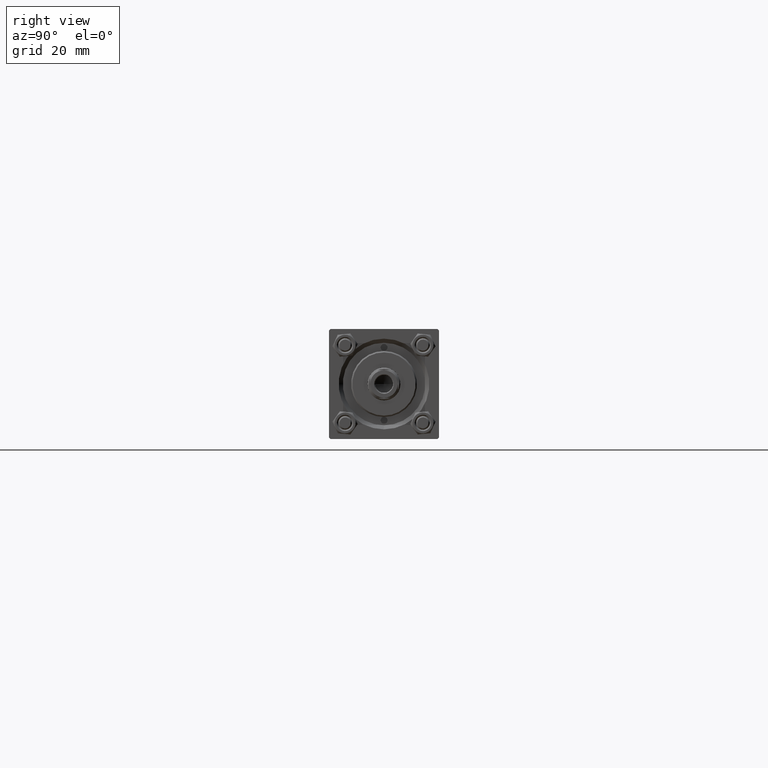
[diagram: clean part render]
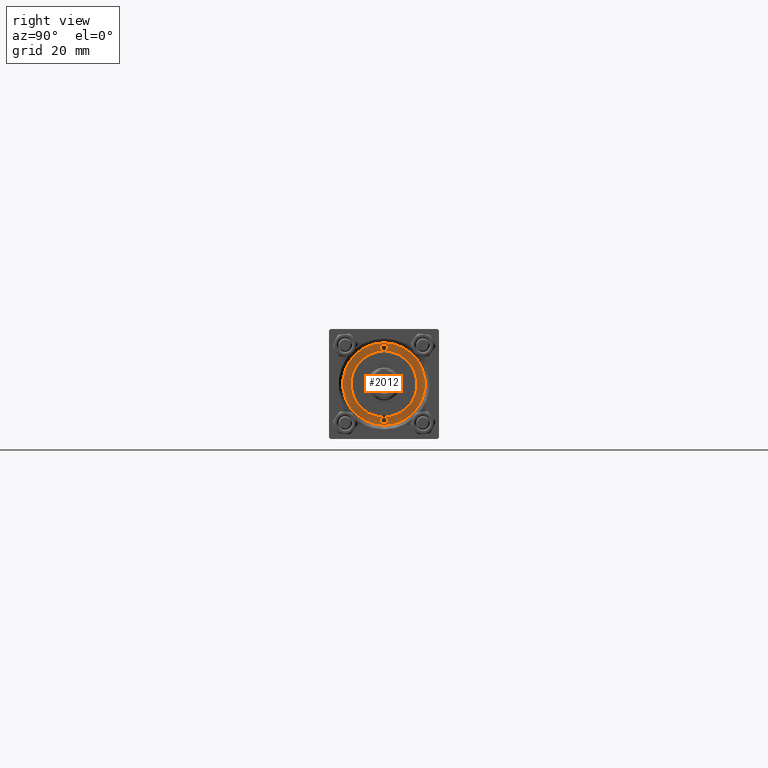
[diagram: same view with one face highlighted and labeled with its STEP entity id]
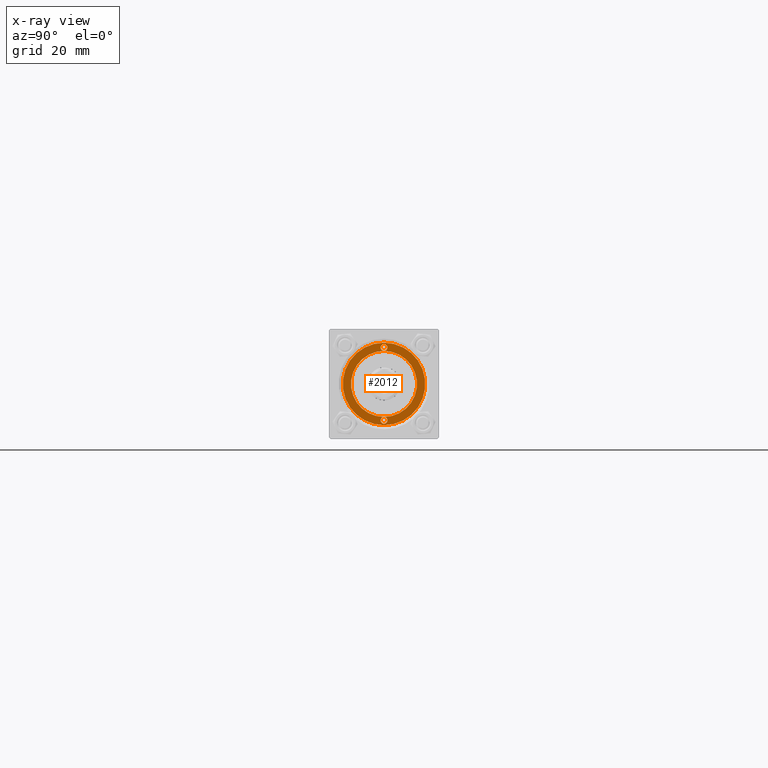
[diagram: x-ray of the same camera — body ghosted, the highlighted face saturated]
A machine part, right view. The second image highlights one B-rep face of the part: STEP entity #2012.
The next image is the same camera in x-ray: the body ghosted, the highlighted face saturated — about 0% of this face is hidden behind the body in this view.
In plain terms, the highlighted planar face has unit normal (1, 0, -0).
Its self-contained STEP definition (entity closure, byte-faithful):
#377 = CIRCLE ( 'NONE', #4379, 12.00000000000000178 ) ;
#1663 = ORIENTED_EDGE ( 'NONE', *, *, #8467, .F. ) ;
#2012 = ADVANCED_FACE ( 'NONE', ( #9026, #5486 ), #20880, .T. ) ;
#2059 = ORIENTED_EDGE ( 'NONE', *, *, #5171, .F. ) ;
#2260 = CARTESIAN_POINT ( 'NONE',  ( -14.49999999999999822, 1.530808498934190585E-16, 28.69999999999999929 ) ) ;
#2496 = DIRECTION ( 'NONE',  ( 0.000000000000000000, 0.000000000000000000, 1.000000000000000000 ) ) ;
#3021 = VERTEX_POINT ( 'NONE', #2260 ) ;
#3840 = EDGE_LOOP ( 'NONE', ( #25704, #20280 ) ) ;
#4037 = EDGE_LOOP ( 'NONE', ( #36023, #5156, #1663, #32051, #2059, #8990 ) ) ;
#4377 = CARTESIAN_POINT ( 'NONE',  ( 0.000000000000000000, 0.000000000000000000, 28.69999999999999929 ) ) ;
#4379 = AXIS2_PLACEMENT_3D ( 'NONE', #44669, #2496, #48233 ) ;
#5156 = ORIENTED_EDGE ( 'NONE', *, *, #37603, .F. ) ;
#5171 = EDGE_CURVE ( 'NONE', #48379, #42589, #31416, .T. ) ;
#5486 = FACE_OUTER_BOUND ( 'NONE', #3840, .T. ) ;
#7208 = VERTEX_POINT ( 'NONE', #10158 ) ;
#7729 = DIRECTION ( 'NONE',  ( 1.000000000000000000, 0.000000000000000000, 0.000000000000000000 ) ) ;
#8417 = AXIS2_PLACEMENT_3D ( 'NONE', #37790, #30476, #11542 ) ;
#8467 = EDGE_CURVE ( 'NONE', #12778, #3021, #35514, .T. ) ;
#8789 = EDGE_CURVE ( 'NONE', #42589, #48379, #33922, .T. ) ;
#8990 = ORIENTED_EDGE ( 'NONE', *, *, #8789, .F. ) ;
#9026 = FACE_BOUND ( 'NONE', #4037, .T. ) ;
#9265 = EDGE_CURVE ( 'NONE', #13315, #7208, #48467, .T. ) ;
#9735 = DIRECTION ( 'NONE',  ( 1.000000000000000000, 0.000000000000000000, 0.000000000000000000 ) ) ;
#10158 = CARTESIAN_POINT ( 'NONE',  ( 15.00000000000000000, 1.836970198721029589E-15, 28.69999999999999929 ) ) ;
#11394 = AXIS2_PLACEMENT_3D ( 'NONE', #19153, #49968, #15372 ) ;
#11542 = DIRECTION ( 'NONE',  ( 1.000000000000000000, 0.000000000000000000, 0.000000000000000000 ) ) ;
#11969 = DIRECTION ( 'NONE',  ( 0.000000000000000000, 0.000000000000000000, 1.000000000000000000 ) ) ;
#12092 = CARTESIAN_POINT ( 'NONE',  ( 0.000000000000000000, 0.000000000000000000, 28.69999999999999929 ) ) ;
#12778 = VERTEX_POINT ( 'NONE', #19457 ) ;
#13315 = VERTEX_POINT ( 'NONE', #44102 ) ;
#13984 = AXIS2_PLACEMENT_3D ( 'NONE', #26087, #49336, #41754 ) ;
#15372 = DIRECTION ( 'NONE',  ( 1.000000000000000000, 0.000000000000000000, 0.000000000000000000 ) ) ;
#17379 = CARTESIAN_POINT ( 'NONE',  ( 12.00000000000000178, 0.000000000000000000, 28.69999999999999929 ) ) ;
#17404 = EDGE_CURVE ( 'NONE', #12778, #42589, #29363, .T. ) ;
#18327 = DIRECTION ( 'NONE',  ( 0.000000000000000000, 0.000000000000000000, 1.000000000000000000 ) ) ;
#19153 = CARTESIAN_POINT ( 'NONE',  ( -13.25000000000000178, 0.000000000000000000, 28.69999999999999929 ) ) ;
#19457 = CARTESIAN_POINT ( 'NONE',  ( -12.00000000000000178, 0.000000000000000000, 28.69999999999999929 ) ) ;
#19528 = EDGE_CURVE ( 'NONE', #7208, #13315, #24488, .T. ) ;
#20280 = ORIENTED_EDGE ( 'NONE', *, *, #19528, .T. ) ;
#20603 = DIRECTION ( 'NONE',  ( 0.000000000000000000, 0.000000000000000000, 1.000000000000000000 ) ) ;
#20803 = EDGE_CURVE ( 'NONE', #42589, #12778, #377, .T. ) ;
#20880 = PLANE ( 'NONE',  #41095 ) ;
#23681 = DIRECTION ( 'NONE',  ( 1.000000000000000000, 0.000000000000000000, -0.000000000000000000 ) ) ;
#24488 = CIRCLE ( 'NONE', #13984, 15.00000000000000000 ) ;
#25704 = ORIENTED_EDGE ( 'NONE', *, *, #9265, .T. ) ;
#26087 = CARTESIAN_POINT ( 'NONE',  ( 0.000000000000000000, 0.000000000000000000, 28.69999999999999929 ) ) ;
#27378 = AXIS2_PLACEMENT_3D ( 'NONE', #32456, #20603, #9735 ) ;
#27382 = DIRECTION ( 'NONE',  ( 1.000000000000000000, 0.000000000000000000, 0.000000000000000000 ) ) ;
#29363 = CIRCLE ( 'NONE', #8417, 12.00000000000000178 ) ;
#30168 = DIRECTION ( 'NONE',  ( 0.000000000000000000, 0.000000000000000000, 1.000000000000000000 ) ) ;
#30476 = DIRECTION ( 'NONE',  ( 0.000000000000000000, 0.000000000000000000, 1.000000000000000000 ) ) ;
#30893 = DIRECTION ( 'NONE',  ( 1.000000000000000000, 0.000000000000000000, 0.000000000000000000 ) ) ;
#31416 = CIRCLE ( 'NONE', #27378, 1.249999999999999334 ) ;
#32051 = ORIENTED_EDGE ( 'NONE', *, *, #20803, .F. ) ;
#32456 = CARTESIAN_POINT ( 'NONE',  ( 13.25000000000000000, 0.000000000000000000, 28.69999999999999929 ) ) ;
#32550 = AXIS2_PLACEMENT_3D ( 'NONE', #33947, #30168, #27382 ) ;
#33922 = CIRCLE ( 'NONE', #42813, 1.249999999999999334 ) ;
#33947 = CARTESIAN_POINT ( 'NONE',  ( -13.25000000000000178, 0.000000000000000000, 28.69999999999999929 ) ) ;
#33958 = CARTESIAN_POINT ( 'NONE',  ( 14.49999999999999822, 0.000000000000000000, 28.69999999999999929 ) ) ;
#35514 = CIRCLE ( 'NONE', #11394, 1.249999999999997558 ) ;
#36023 = ORIENTED_EDGE ( 'NONE', *, *, #17404, .F. ) ;
#36279 = DIRECTION ( 'NONE',  ( 0.000000000000000000, 0.000000000000000000, 1.000000000000000000 ) ) ;
#37603 = EDGE_CURVE ( 'NONE', #3021, #12778, #42152, .T. ) ;
#37790 = CARTESIAN_POINT ( 'NONE',  ( 0.000000000000000000, 0.000000000000000000, 28.69999999999999929 ) ) ;
#40381 = AXIS2_PLACEMENT_3D ( 'NONE', #4377, #11969, #30893 ) ;
#41095 = AXIS2_PLACEMENT_3D ( 'NONE', #12092, #36279, #23681 ) ;
#41754 = DIRECTION ( 'NONE',  ( 1.000000000000000000, 0.000000000000000000, 0.000000000000000000 ) ) ;
#42152 = CIRCLE ( 'NONE', #32550, 1.249999999999997558 ) ;
#42589 = VERTEX_POINT ( 'NONE', #17379 ) ;
#42813 = AXIS2_PLACEMENT_3D ( 'NONE', #49157, #18327, #7729 ) ;
#44102 = CARTESIAN_POINT ( 'NONE',  ( -15.00000000000000000, 0.000000000000000000, 28.69999999999999929 ) ) ;
#44669 = CARTESIAN_POINT ( 'NONE',  ( 0.000000000000000000, 0.000000000000000000, 28.69999999999999929 ) ) ;
#48233 = DIRECTION ( 'NONE',  ( 1.000000000000000000, 0.000000000000000000, 0.000000000000000000 ) ) ;
#48379 = VERTEX_POINT ( 'NONE', #33958 ) ;
#48467 = CIRCLE ( 'NONE', #40381, 15.00000000000000000 ) ;
#49157 = CARTESIAN_POINT ( 'NONE',  ( 13.25000000000000000, 0.000000000000000000, 28.69999999999999929 ) ) ;
#49336 = DIRECTION ( 'NONE',  ( 0.000000000000000000, 0.000000000000000000, 1.000000000000000000 ) ) ;
#49968 = DIRECTION ( 'NONE',  ( 0.000000000000000000, 0.000000000000000000, 1.000000000000000000 ) ) ;